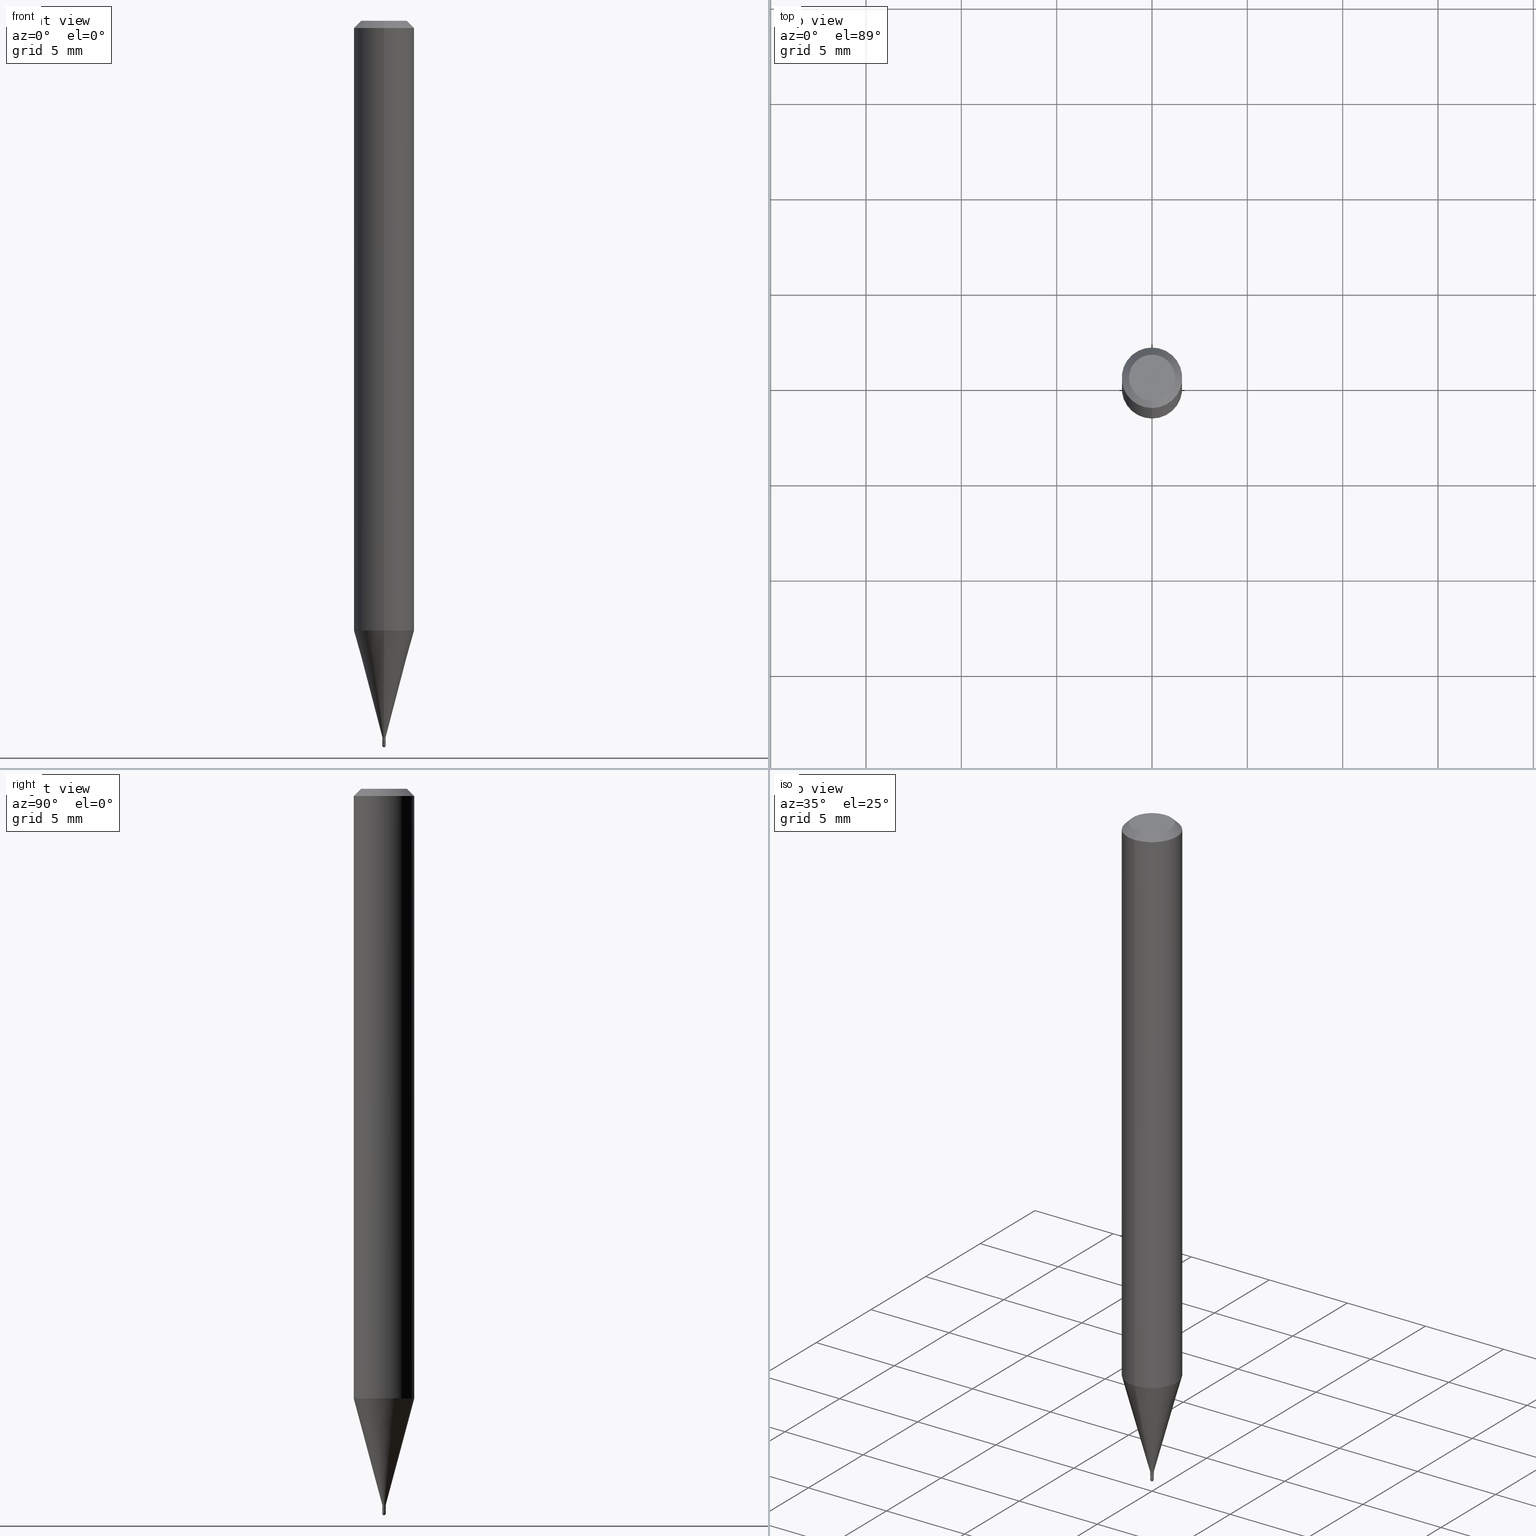
[diagram: canonical four-view strip — front | top / right | iso, engineering-drawing reading convention]
A machine part, canonical four-view strip (front | top / right | iso — engineering-drawing reading convention). The complete STEP part file that produces these views, byte-faithful:
ISO-10303-21;
HEADER;
FILE_DESCRIPTION (( 'STEP AP203' ),
    '1' );
FILE_NAME ('03031.STEP',
    '2024-03-08T18:01:46',
    ( '' ),
    ( '' ),
    'SwSTEP 2.0',
    'SolidWorks 2023',
    '' );
FILE_SCHEMA (( 'CONFIG_CONTROL_DESIGN' ));
ENDSEC;

DATA;
#1 = PERSON_AND_ORGANIZATION ( #153, #416 ) ;
#2 = CARTESIAN_POINT ( 'NONE',  ( 3.659644068456056966E-29, -5.225001823578766863E-15, -1.496499999999999941 ) ) ;
#3 = EDGE_CURVE ( 'NONE', #361, #146, #306, .T. ) ;
#4 = CONICAL_SURFACE ( 'NONE', #103, 0.06250000000000000000, 0.7853981633974483900 ) ;
#5 = CIRCLE ( 'NONE', #253, 0.003499999999999920709 ) ;
#6 = LINE ( 'NONE', #8, #76 ) ;
#7 = DIRECTION ( 'NONE',  ( -6.982962677686265922E-15, -1.000000000000000000, 3.483106191921935554E-15 ) ) ;
#8 = CARTESIAN_POINT ( 'NONE',  ( -2.444036937186523075E-17, -0.003500000000005088017, -1.478999999999999648 ) ) ;
#9 = EDGE_CURVE ( 'NONE', #384, #146, #501, .T. ) ;
#10 = CARTESIAN_POINT ( 'NONE',  ( -2.444036937190140433E-17, -0.003499999999999924612, 1.222017216594032773E-17 ) ) ;
#11 = ORIENTED_EDGE ( 'NONE', *, *, #314, .F. ) ;
#12 = EDGE_LOOP ( 'NONE', ( #18, #437, #322, #287, #127 ) ) ;
#13 = AXIS2_PLACEMENT_3D ( 'NONE', #124, #459, #509 ) ;
#14 = ORIENTED_EDGE ( 'NONE', *, *, #341, .F. ) ;
#15 = FACE_OUTER_BOUND ( 'NONE', #220, .T. ) ;
#16 = ORIENTED_EDGE ( 'NONE', *, *, #460, .F. ) ;
#17 = CARTESIAN_POINT ( 'NONE',  ( 3.668206956139024136E-31, -5.237216642545884237E-17, -0.01499999999999976179 ) ) ;
#18 = ORIENTED_EDGE ( 'NONE', *, *, #222, .T. ) ;
#19 = ORIENTED_EDGE ( 'NONE', *, *, #365, .T. ) ;
#20 = LINE ( 'NONE', #142, #327 ) ;
#21 = APPROVAL ( #201, 'UNSPECIFIED' ) ;
#22 = ORIENTED_EDGE ( 'NONE', *, *, #498, .T. ) ;
#23 = ORIENTED_EDGE ( 'NONE', *, *, #74, .F. ) ;
#24 = CIRCLE ( 'NONE', #94, 0.06250000000000000000 ) ;
#25 = VECTOR ( 'NONE', #264, 39.37007874015748143 ) ;
#26 = DIRECTION ( 'NONE',  ( -2.445468806185136597E-29, 3.491481338843145583E-15, 1.000000000000000000 ) ) ;
#27 = ORIENTED_EDGE ( 'NONE', *, *, #278, .T. ) ;
#28 = ORIENTED_EDGE ( 'NONE', *, *, #43, .T. ) ;
#29 = DIRECTION ( 'NONE',  ( 1.000000000000000000, 0.000000000000000000, 0.000000000000000000 ) ) ;
#30 = DIRECTION ( 'NONE',  ( -2.445471304092721818E-29, 3.491477761697311641E-15, 1.000000000000000000 ) ) ;
#31 = CC_DESIGN_PERSON_AND_ORGANIZATION_ASSIGNMENT ( #385, #272, ( #263 ) ) ;
#32 = VECTOR ( 'NONE', #363, 39.37007874015748143 ) ;
#33 = AXIS2_PLACEMENT_3D ( 'NONE', #315, #214, #362 ) ;
#34 = EDGE_CURVE ( 'NONE', #280, #205, #456, .T. ) ;
#35 = LENGTH_MEASURE_WITH_UNIT ( LENGTH_MEASURE( 0.02539999999999999897 ), #292 );
#36 = CALENDAR_DATE ( 2024, 8, 3 ) ;
#37 = PERSON_AND_ORGANIZATION ( #153, #416 ) ;
#38 = APPROVAL_PERSON_ORGANIZATION ( #389, #136, #121 ) ;
#39 = DIRECTION ( 'NONE',  ( -6.982962677686265922E-15, -1.000000000000000000, 3.491477761697311641E-15 ) ) ;
#40 = EDGE_CURVE ( 'NONE', #250, #254, #111, .T. ) ;
#41 = FACE_OUTER_BOUND ( 'NONE', #102, .T. ) ;
#42 = COORDINATED_UNIVERSAL_TIME_OFFSET ( 5, 0, .BEHIND. ) ;
#43 = EDGE_CURVE ( 'NONE', #405, #384, #239, .T. ) ;
#44 = APPROVAL_DATE_TIME ( #417, #21 ) ;
#45 = ORIENTED_EDGE ( 'NONE', *, *, #222, .F. ) ;
#46 = CALENDAR_DATE ( 2024, 8, 3 ) ;
#47 = ORIENTED_EDGE ( 'NONE', *, *, #148, .T. ) ;
#48 = AXIS2_PLACEMENT_3D ( 'NONE', #402, #143, #449 ) ;
#49 = LOCAL_TIME ( 13, 1, 46.00000000000000000, #510 ) ;
#50 = DIRECTION ( 'NONE',  ( 2.445471304092721818E-29, -3.491477761697311641E-15, -1.000000000000000000 ) ) ;
#51 = ORIENTED_EDGE ( 'NONE', *, *, #9, .F. ) ;
#52 = ORIENTED_EDGE ( 'NONE', *, *, #74, .T. ) ;
#53 = SPHERICAL_SURFACE ( 'NONE', #235, 0.003499999999999920709 ) ;
#54 = CARTESIAN_POINT ( 'NONE',  ( 3.078381292588917151E-29, -4.395103637941402881E-15, -1.258809002353436624 ) ) ;
#55 = CARTESIAN_POINT ( 'NONE',  ( -4.364351673553916201E-16, -0.06250000000000000000, 2.182173601060819776E-16 ) ) ;
#56 = ORIENTED_EDGE ( 'NONE', *, *, #213, .F. ) ;
#57 = DIRECTION ( 'NONE',  ( -6.982962677686265922E-15, -1.000000000000000000, 0.000000000000000000 ) ) ;
#58 = PLANE ( 'NONE',  #90 ) ;
#59 = EDGE_CURVE ( 'NONE', #361, #133, #24, .T. ) ;
#60 = ORIENTED_EDGE ( 'NONE', *, *, #59, .T. ) ;
#61 = ADVANCED_FACE ( 'NONE', ( #311 ), #215, .F. ) ;
#62 = ORIENTED_EDGE ( 'NONE', *, *, #278, .F. ) ;
#63 = FACE_OUTER_BOUND ( 'NONE', #129, .T. ) ;
#64 = DIRECTION ( 'NONE',  ( -2.445468806185136597E-29, 3.491481338843145583E-15, 1.000000000000000000 ) ) ;
#65 = CARTESIAN_POINT ( 'NONE',  ( -0.003500000000000000940, 2.486899575160351319E-17, -1.721627281589217370E-31 ) ) ;
#66 = AXIS2_PLACEMENT_3D ( 'NONE', #247, #396, #208 ) ;
#67 = EDGE_LOOP ( 'NONE', ( #98, #450 ) ) ;
#68 = DIRECTION ( 'NONE',  ( 6.982962677686265922E-15, 1.000000000000000000, -3.491477761697311641E-15 ) ) ;
#69 = ADVANCED_FACE ( 'NONE', ( #150 ), #290, .T. ) ;
#70 = UNCERTAINTY_MEASURE_WITH_UNIT (LENGTH_MEASURE( 1.000000000000000082E-05 ), #71, 'distance_accuracy_value', 'NONE');
#71 =( CONVERSION_BASED_UNIT ( 'INCH', #35 ) LENGTH_UNIT ( ) NAMED_UNIT ( #487 ) );
#72 = EDGE_CURVE ( 'NONE', #283, #429, #108, .T. ) ;
#73 = CARTESIAN_POINT ( 'NONE',  ( 3.659344760254844264E-29, -5.225430449958468947E-15, -1.496499999999999941 ) ) ;
#74 = EDGE_CURVE ( 'NONE', #205, #135, #20, .T. ) ;
#75 = CARTESIAN_POINT ( 'NONE',  ( 3.667754246975885842E-29, -5.237864947834270120E-15, -1.499999999999999778 ) ) ;
#76 = VECTOR ( 'NONE', #275, 39.37007874015748854 ) ;
#77 = AXIS2_PLACEMENT_3D ( 'NONE', #224, #505, #381 ) ;
#78 = APPLICATION_CONTEXT ( 'configuration controlled 3d designs of mechanical parts and assemblies' ) ;
#79 = EDGE_CURVE ( 'NONE', #392, #135, #226, .T. ) ;
#80 = FACE_OUTER_BOUND ( 'NONE', #497, .T. ) ;
#81 = PERSON_AND_ORGANIZATION_ROLE ( 'creator' ) ;
#82 = CARTESIAN_POINT ( 'NONE',  ( -5.856621878284870506E-45, 8.361686768713868835E-31, 2.394884727734598175E-16 ) ) ;
#83 = FACE_OUTER_BOUND ( 'NONE', #299, .T. ) ;
#84 = PERSON_AND_ORGANIZATION_ROLE ( 'classification_officer' ) ;
#85 = DIRECTION ( 'NONE',  ( -2.445471304092721818E-29, 3.491477761697311641E-15, 1.000000000000000000 ) ) ;
#86 = EDGE_CURVE ( 'NONE', #181, #146, #225, .T. ) ;
#87 = SPHERICAL_SURFACE ( 'NONE', #435, 0.003499999999999920709 ) ;
#88 = CALENDAR_DATE ( 2024, 8, 3 ) ;
#89 = VECTOR ( 'NONE', #374, 39.37007874015748143 ) ;
#90 = AXIS2_PLACEMENT_3D ( 'NONE', #182, #221, #356 ) ;
#91 = CARTESIAN_POINT ( 'NONE',  ( 3.641303052409668307E-29, -5.198815713537444309E-15, -1.489000000000000101 ) ) ;
#92 = CYLINDRICAL_SURFACE ( 'NONE', #223, 0.003499999999999924612 ) ;
#93 = SHAPE_DEFINITION_REPRESENTATION ( #461, #329 ) ;
#94 = AXIS2_PLACEMENT_3D ( 'NONE', #54, #125, #171 ) ;
#95 = CIRCLE ( 'NONE', #279, 0.003500000000000000507 ) ;
#96 = FACE_OUTER_BOUND ( 'NONE', #474, .T. ) ;
#97 = ADVANCED_FACE ( 'NONE', ( #80 ), #258, .T. ) ;
#98 = ORIENTED_EDGE ( 'NONE', *, *, #229, .T. ) ;
#99 = CARTESIAN_POINT ( 'NONE',  ( 2.486899575163981620E-17, 0.003499999999994735621, -1.496499999999999941 ) ) ;
#100 = DIRECTION ( 'NONE',  ( 1.000000000000000000, -6.982962677686265133E-15, 4.883557194083112340E-29 ) ) ;
#101 = ORIENTED_EDGE ( 'NONE', *, *, #79, .T. ) ;
#102 = EDGE_LOOP ( 'NONE', ( #398, #27, #282, #494 ) ) ;
#103 = AXIS2_PLACEMENT_3D ( 'NONE', #207, #50, #305 ) ;
#104 = AXIS2_PLACEMENT_3D ( 'NONE', #344, #483, #172 ) ;
#105 = DIRECTION ( 'NONE',  ( -1.000000000000000000, 6.982962677686265922E-15, -4.876176775795935793E-29 ) ) ;
#106 = EDGE_LOOP ( 'NONE', ( #400, #174 ) ) ;
#107 = DIRECTION ( 'NONE',  ( 6.982962677686265922E-15, 1.000000000000000000, -3.483106191921935554E-15 ) ) ;
#108 = LINE ( 'NONE', #65, #32 ) ;
#109 = ORIENTED_EDGE ( 'NONE', *, *, #79, .F. ) ;
#110 = FACE_OUTER_BOUND ( 'NONE', #106, .T. ) ;
#111 = CIRCLE ( 'NONE', #66, 0.003499999999999924179 ) ;
#112 = LOCAL_TIME ( 13, 1, 46.00000000000000000, #236 ) ;
#113 = ORIENTED_EDGE ( 'NONE', *, *, #162, .T. ) ;
#114 = DIRECTION ( 'NONE',  ( 1.000000000000000000, -6.982962677686265133E-15, 4.883557194083112340E-29 ) ) ;
#115 = PERSON_AND_ORGANIZATION ( #153, #416 ) ;
#116 = ADVANCED_FACE ( 'NONE', ( #83 ), #87, .T. ) ;
#117 = VECTOR ( 'NONE', #139, 39.37007874015748143 ) ;
#118 = CYLINDRICAL_SURFACE ( 'NONE', #104, 0.003499999999999924612 ) ;
#119 = DIRECTION ( 'NONE',  ( -6.982962677686265922E-15, -1.000000000000000000, 3.491477761697311641E-15 ) ) ;
#120 = DIRECTION ( 'NONE',  ( -2.445471304092721818E-29, 3.491477761697311641E-15, 1.000000000000000000 ) ) ;
#121 = APPROVAL_ROLE ( '' ) ;
#122 = ADVANCED_FACE ( 'NONE', ( #420 ), #92, .T. ) ;
#123 = AXIS2_PLACEMENT_3D ( 'NONE', #339, #512, #419 ) ;
#124 = CARTESIAN_POINT ( 'NONE',  ( 3.641306771794062712E-29, -5.198810387167297216E-15, -1.489000000000000101 ) ) ;
#125 = DIRECTION ( 'NONE',  ( -2.445471304092721818E-29, 3.491477761697311641E-15, 1.000000000000000000 ) ) ;
#126 = CALENDAR_DATE ( 2024, 8, 3 ) ;
#127 = ORIENTED_EDGE ( 'NONE', *, *, #341, .T. ) ;
#128 = AXIS2_PLACEMENT_3D ( 'NONE', #271, #85, #463 ) ;
#129 = EDGE_LOOP ( 'NONE', ( #252, #56 ) ) ;
#130 = LOCAL_TIME ( 13, 1, 46.00000000000000000, #166 ) ;
#131 = DIRECTION ( 'NONE',  ( -2.445471304092721818E-29, 3.491477761697311641E-15, 1.000000000000000000 ) ) ;
#132 = ADVANCED_FACE ( 'NONE', ( #159 ), #169, .T. ) ;
#133 = VERTEX_POINT ( 'NONE', #496 ) ;
#134 = FACE_OUTER_BOUND ( 'NONE', #426, .T. ) ;
#135 = VERTEX_POINT ( 'NONE', #190 ) ;
#136 = APPROVAL ( #422, 'UNSPECIFIED' ) ;
#137 = ORIENTED_EDGE ( 'NONE', *, *, #314, .T. ) ;
#138 = CARTESIAN_POINT ( 'NONE',  ( -2.444036937186507975E-17, -0.003500000000005132686, -1.488500000000000156 ) ) ;
#139 = DIRECTION ( 'NONE',  ( -4.937700262164674260E-15, -0.7071067811865632269, 0.7071067811865319186 ) ) ;
#140 = CONICAL_SURFACE ( 'NONE', #13, 0.003000000000000000496, 0.7853981633974739252 ) ;
#141 =( GEOMETRIC_REPRESENTATION_CONTEXT ( 3 ) GLOBAL_UNCERTAINTY_ASSIGNED_CONTEXT ( ( #70 ) ) GLOBAL_UNIT_ASSIGNED_CONTEXT ( ( #71, #193, #191 ) ) REPRESENTATION_CONTEXT ( 'NONE', 'WORKASPACE' ) );
#142 = CARTESIAN_POINT ( 'NONE',  ( 2.131628207283941996E-17, 0.002999999999994801530, -1.489000000000000101 ) ) ;
#143 = DIRECTION ( 'NONE',  ( -2.445468806185136597E-29, 3.491481338843145583E-15, 1.000000000000000000 ) ) ;
#144 = CARTESIAN_POINT ( 'NONE',  ( -3.773273898774340269E-16, -0.04749999999999999362, 4.053336664540820652E-16 ) ) ;
#145 = CARTESIAN_POINT ( 'NONE',  ( 4.440892098500935790E-16, 0.06249999999999995143, -0.01499999999999997863 ) ) ;
#146 = VERTEX_POINT ( 'NONE', #145 ) ;
#147 = DIRECTION ( 'NONE',  ( -6.982962677686265922E-15, -1.000000000000000000, 0.000000000000000000 ) ) ;
#148 = EDGE_CURVE ( 'NONE', #254, #361, #332, .T. ) ;
#149 = DIRECTION ( 'NONE',  ( 1.839019923739602682E-15, 0.2588190451025252914, 0.9659258262890670910 ) ) ;
#150 = FACE_OUTER_BOUND ( 'NONE', #12, .T. ) ;
#151 = CLOSED_SHELL ( 'NONE', ( #69, #116, #61, #273, #421 ) ) ;
#152 = AXIS2_PLACEMENT_3D ( 'NONE', #335, #289, #68 ) ;
#153 = PERSON ( 'UNSPECIFIED', 'UNSPECIFIED', 'UNSPECIFIED', ('UNSPECIFIED'), ('UNSPECIFIED'), ('UNSPECIFIED') ) ;
#154 = CARTESIAN_POINT ( 'NONE',  ( 3.641303052409668307E-29, -5.198815713537444309E-15, -1.489000000000000101 ) ) ;
#155 = CARTESIAN_POINT ( 'NONE',  ( 4.364351673553919652E-16, 0.06249999999999995143, -0.01499999999999997863 ) ) ;
#156 = CARTESIAN_POINT ( 'NONE',  ( 3.659644068456056966E-29, -5.225001823578766863E-15, -1.496499999999999941 ) ) ;
#157 = DIRECTION ( 'NONE',  ( 7.105427357601001070E-15, 1.000000000000000000, 0.000000000000000000 ) ) ;
#158 = DIRECTION ( 'NONE',  ( 1.000000000000000000, -6.982962677686192558E-15, 0.000000000000000000 ) ) ;
#159 = FACE_OUTER_BOUND ( 'NONE', #371, .T. ) ;
#160 = DATE_AND_TIME ( #36, #387 ) ;
#161 = DATE_TIME_ROLE ( 'creation_date' ) ;
#162 = EDGE_CURVE ( 'NONE', #254, #250, #465, .T. ) ;
#163 = DIRECTION ( 'NONE',  ( -6.982962677686265133E-15, -1.000000000000000000, 0.000000000000000000 ) ) ;
#164 = EDGE_CURVE ( 'NONE', #405, #181, #340, .T. ) ;
#165 = VECTOR ( 'NONE', #466, 39.37007874015748143 ) ;
#166 = COORDINATED_UNIVERSAL_TIME_OFFSET ( 5, 0, .BEHIND. ) ;
#167 = VECTOR ( 'NONE', #313, 39.37007874015748143 ) ;
#168 = AXIS2_PLACEMENT_3D ( 'NONE', #259, #26, #331 ) ;
#169 = CYLINDRICAL_SURFACE ( 'NONE', #403, 0.06250000000000000000 ) ;
#170 = EDGE_CURVE ( 'NONE', #146, #384, #268, .T. ) ;
#171 = DIRECTION ( 'NONE',  ( -6.982962677686265922E-15, -1.000000000000000000, 4.370956789862821150E-15 ) ) ;
#172 = DIRECTION ( 'NONE',  ( -6.982962677686265922E-15, -1.000000000000000000, 3.491477761697311641E-15 ) ) ;
#173 = ORIENTED_EDGE ( 'NONE', *, *, #300, .T. ) ;
#174 = ORIENTED_EDGE ( 'NONE', *, *, #164, .T. ) ;
#175 = DIRECTION ( 'NONE',  ( -2.445471304092721818E-29, 3.491477761697311641E-15, 1.000000000000000000 ) ) ;
#176 = ORIENTED_EDGE ( 'NONE', *, *, #34, .T. ) ;
#177 = DIRECTION ( 'NONE',  ( -6.982962677686265133E-15, -1.000000000000000000, 0.000000000000000000 ) ) ;
#178 = CIRCLE ( 'NONE', #378, 0.003499999999999925046 ) ;
#179 = PRODUCT ( '03031', '03031', '', ( #455 ) ) ;
#180 = CC_DESIGN_SECURITY_CLASSIFICATION ( #447, ( #263 ) ) ;
#181 = VERTEX_POINT ( 'NONE', #423 ) ;
#182 = CARTESIAN_POINT ( 'NONE',  ( 3.641306771794062712E-29, -5.198810387167297216E-15, -1.489000000000000101 ) ) ;
#183 = EDGE_LOOP ( 'NONE', ( #242, #19, #409, #469, #240 ) ) ;
#184 = EDGE_LOOP ( 'NONE', ( #440, #47, #401, #350 ) ) ;
#185 = ORIENTED_EDGE ( 'NONE', *, *, #170, .T. ) ;
#186 = CARTESIAN_POINT ( 'NONE',  ( -0.003500000000000000507, -5.187039772806502058E-15, -1.489000000000000101 ) ) ;
#187 = VERTEX_POINT ( 'NONE', #233 ) ;
#188 = APPLICATION_PROTOCOL_DEFINITION ( 'international standard', 'config_control_design', 1994, #373 ) ;
#189 = DIRECTION ( 'NONE',  ( -2.445471304092721818E-29, 3.491477761697311641E-15, 1.000000000000000000 ) ) ;
#190 = CARTESIAN_POINT ( 'NONE',  ( 2.486899575163929851E-17, 0.003499999999994717406, -1.488500000000000156 ) ) ;
#191 =( NAMED_UNIT ( * ) SI_UNIT ( $, .STERADIAN. ) SOLID_ANGLE_UNIT ( ) );
#192 = CIRCLE ( 'NONE', #197, 0.003500000000000000940 ) ;
#193 =( NAMED_UNIT ( * ) PLANE_ANGLE_UNIT ( ) SI_UNIT ( $, .RADIAN. ) );
#194 = FACE_OUTER_BOUND ( 'NONE', #267, .T. ) ;
#195 = DIRECTION ( 'NONE',  ( -6.982962677686266711E-15, -1.000000000000000000, 3.491477761697310852E-15 ) ) ;
#196 = ADVANCED_FACE ( 'NONE', ( #194 ), #140, .T. ) ;
#197 = AXIS2_PLACEMENT_3D ( 'NONE', #2, #202, #301 ) ;
#198 = AXIS2_PLACEMENT_3D ( 'NONE', #281, #451, #333 ) ;
#199 = PERSON_AND_ORGANIZATION_ROLE ( 'creator' ) ;
#200 = CARTESIAN_POINT ( 'NONE',  ( 2.309263891223939467E-17, 0.002999999999994801530, -1.489000000000000101 ) ) ;
#201 = APPROVAL_STATUS ( 'not_yet_approved' ) ;
#202 = DIRECTION ( 'NONE',  ( -2.445468806185136597E-29, 3.491481338843145583E-15, 1.000000000000000000 ) ) ;
#203 = CARTESIAN_POINT ( 'NONE',  ( 4.440892098500625669E-16, 0.06250000000000000000, -2.182173601060819776E-16 ) ) ;
#204 = CARTESIAN_POINT ( 'NONE',  ( -2.094888803302238693E-17, -0.003000000000005199462, -1.489000000000000101 ) ) ;
#205 = VERTEX_POINT ( 'NONE', #200 ) ;
#206 = SECURITY_CLASSIFICATION_LEVEL ( 'unclassified' ) ;
#207 = CARTESIAN_POINT ( 'NONE',  ( 3.668206956139024136E-31, -5.237216642545884237E-17, -0.01499999999999976179 ) ) ;
#208 = DIRECTION ( 'NONE',  ( -6.982962677686265133E-15, -1.000000000000000000, 0.000000000000000000 ) ) ;
#209 = CIRCLE ( 'NONE', #490, 0.04749999999999999362 ) ;
#210 = COORDINATED_UNIVERSAL_TIME_OFFSET ( 5, 0, .BEHIND. ) ;
#211 = AXIS2_PLACEMENT_3D ( 'NONE', #288, #376, #29 ) ;
#212 = CARTESIAN_POINT ( 'NONE',  ( 3.641306771794062712E-29, -5.198810387167297216E-15, -1.489000000000000101 ) ) ;
#213 = EDGE_CURVE ( 'NONE', #205, #280, #410, .T. ) ;
#214 = DIRECTION ( 'NONE',  ( -2.445471304092721818E-29, 3.491477761697311641E-15, 1.000000000000000000 ) ) ;
#215 = PLANE ( 'NONE',  #334 ) ;
#216 = VERTEX_POINT ( 'NONE', #457 ) ;
#217 = VECTOR ( 'NONE', #260, 39.37007874015748143 ) ;
#218 = CARTESIAN_POINT ( 'NONE',  ( -5.856621878284870506E-45, 8.361686768713868835E-31, 2.394884727734598175E-16 ) ) ;
#219 = ORIENTED_EDGE ( 'NONE', *, *, #383, .T. ) ;
#220 = EDGE_LOOP ( 'NONE', ( #480, #256, #485, #185 ) ) ;
#221 = DIRECTION ( 'NONE',  ( -2.445471304092721258E-29, 3.491477761697311641E-15, 1.000000000000000000 ) ) ;
#222 = EDGE_CURVE ( 'NONE', #394, #283, #192, .T. ) ;
#223 = AXIS2_PLACEMENT_3D ( 'NONE', #454, #189, #119 ) ;
#224 = CARTESIAN_POINT ( 'NONE',  ( 3.078381292588917151E-29, -4.395103637941402881E-15, -1.258809002353436624 ) ) ;
#225 = LINE ( 'NONE', #155, #89 ) ;
#226 = CIRCLE ( 'NONE', #251, 0.003499999999999925046 ) ;
#227 = DIRECTION ( 'NONE',  ( -6.982962677686265922E-15, -1.000000000000000000, 0.000000000000000000 ) ) ;
#228 = AXIS2_PLACEMENT_3D ( 'NONE', #255, #326, #388 ) ;
#229 = EDGE_CURVE ( 'NONE', #246, #429, #307, .T. ) ;
#230 = PERSON_AND_ORGANIZATION ( #153, #416 ) ;
#231 = DIRECTION ( 'NONE',  ( -2.445468806185136597E-29, 3.491481338843145583E-15, 1.000000000000000000 ) ) ;
#232 = ADVANCED_FACE ( 'NONE', ( #345 ), #4, .T. ) ;
#233 = CARTESIAN_POINT ( 'NONE',  ( 0.003500000000000000940, -5.236349137930007031E-15, -1.496499999999999941 ) ) ;
#234 = EDGE_CURVE ( 'NONE', #250, #133, #6, .T. ) ;
#235 = AXIS2_PLACEMENT_3D ( 'NONE', #352, #100, #177 ) ;
#236 = COORDINATED_UNIVERSAL_TIME_OFFSET ( 5, 0, .BEHIND. ) ;
#237 = DIRECTION ( 'NONE',  ( 1.000000000000000000, -6.982962677686192558E-15, 0.000000000000000000 ) ) ;
#238 = APPROVAL_ROLE ( '' ) ;
#239 = LINE ( 'NONE', #348, #368 ) ;
#240 = ORIENTED_EDGE ( 'NONE', *, *, #464, .F. ) ;
#241 = DIRECTION ( 'NONE',  ( -2.445471304092721818E-29, 3.491477761697311641E-15, 1.000000000000000000 ) ) ;
#242 = ORIENTED_EDGE ( 'NONE', *, *, #72, .F. ) ;
#243 = CARTESIAN_POINT ( 'NONE',  ( -0.003500000000000000940, -5.187039772806502058E-15, -1.496499999999999941 ) ) ;
#244 = AXIS2_PLACEMENT_3D ( 'NONE', #476, #471, #7 ) ;
#245 = ORIENTED_EDGE ( 'NONE', *, *, #86, .F. ) ;
#246 = VERTEX_POINT ( 'NONE', #302 ) ;
#247 = CARTESIAN_POINT ( 'NONE',  ( 3.616852058753135017E-29, -5.163895609550323406E-15, -1.478999999999999648 ) ) ;
#248 = ORIENTED_EDGE ( 'NONE', *, *, #473, .F. ) ;
#249 = CARTESIAN_POINT ( 'NONE',  ( 4.440892098500932831E-16, 0.06249999999999561462, -1.258809002353437068 ) ) ;
#250 = VERTEX_POINT ( 'NONE', #468 ) ;
#251 = AXIS2_PLACEMENT_3D ( 'NONE', #448, #458, #227 ) ;
#252 = ORIENTED_EDGE ( 'NONE', *, *, #34, .F. ) ;
#253 = AXIS2_PLACEMENT_3D ( 'NONE', #73, #506, #157 ) ;
#254 = VERTEX_POINT ( 'NONE', #433 ) ;
#255 = CARTESIAN_POINT ( 'NONE',  ( 3.659644068456056966E-29, -5.225001823578766863E-15, -1.496499999999999941 ) ) ;
#256 = ORIENTED_EDGE ( 'NONE', *, *, #304, .F. ) ;
#257 = PLANE ( 'NONE',  #152 ) ;
#258 = CONICAL_SURFACE ( 'NONE', #424, 0.003499999999999924179, 0.2617993877991506291 ) ;
#259 = CARTESIAN_POINT ( 'NONE',  ( 0.000000000000000000, 0.000000000000000000, 0.000000000000000000 ) ) ;
#260 = DIRECTION ( 'NONE',  ( -2.445471304092721818E-29, 3.491477761697311641E-15, 1.000000000000000000 ) ) ;
#261 = FACE_OUTER_BOUND ( 'NONE', #184, .T. ) ;
#262 = CARTESIAN_POINT ( 'NONE',  ( -4.364351673553912750E-16, -0.06250000000000005551, -0.01499999999999954321 ) ) ;
#263 = PRODUCT_DEFINITION_FORMATION_WITH_SPECIFIED_SOURCE ( 'ANY', '', #179, .NOT_KNOWN. ) ;
#264 = DIRECTION ( 'NONE',  ( -2.445468806185136877E-29, 3.491481338843145188E-15, 1.000000000000000000 ) ) ;
#265 = CARTESIAN_POINT ( 'NONE',  ( 3.641306771794062712E-29, -5.198810387167297216E-15, -1.489000000000000101 ) ) ;
#266 = EDGE_LOOP ( 'NONE', ( #274, #28, #317, #245 ) ) ;
#267 = EDGE_LOOP ( 'NONE', ( #23, #492, #137, #62 ) ) ;
#268 = CIRCLE ( 'NONE', #128, 0.06250000000000000000 ) ;
#269 = APPROVAL_PERSON_ORGANIZATION ( #1, #359, #270 ) ;
#270 = APPROVAL_ROLE ( '' ) ;
#271 = CARTESIAN_POINT ( 'NONE',  ( 3.668206956139024136E-31, -5.237216642545884237E-17, -0.01499999999999976179 ) ) ;
#272 = PERSON_AND_ORGANIZATION_ROLE ( 'design_supplier' ) ;
#273 = ADVANCED_FACE ( 'NONE', ( #96 ), #53, .T. ) ;
#274 = ORIENTED_EDGE ( 'NONE', *, *, #164, .F. ) ;
#275 = DIRECTION ( 'NONE',  ( -1.807323732225332900E-15, -0.2588190451025185190, 0.9659258262890689783 ) ) ;
#276 = LINE ( 'NONE', #55, #347 ) ;
#277 = AXIS2_PLACEMENT_3D ( 'NONE', #82, #428, #195 ) ;
#278 = EDGE_CURVE ( 'NONE', #135, #392, #178, .T. ) ;
#279 = AXIS2_PLACEMENT_3D ( 'NONE', #154, #64, #158 ) ;
#280 = VERTEX_POINT ( 'NONE', #204 ) ;
#281 = CARTESIAN_POINT ( 'NONE',  ( 0.000000000000000000, 0.000000000000000000, 0.000000000000000000 ) ) ;
#282 = ORIENTED_EDGE ( 'NONE', *, *, #351, .T. ) ;
#283 = VERTEX_POINT ( 'NONE', #243 ) ;
#284 = CYLINDRICAL_SURFACE ( 'NONE', #198, 0.06250000000000000000 ) ;
#285 = ORIENTED_EDGE ( 'NONE', *, *, #234, .T. ) ;
#286 = DIRECTION ( 'NONE',  ( 5.024295867788190974E-15, 0.7071067811865681119, 0.7071067811865270336 ) ) ;
#287 = ORIENTED_EDGE ( 'NONE', *, *, #390, .F. ) ;
#288 = CARTESIAN_POINT ( 'NONE',  ( 0.000000000000000000, 0.000000000000000000, 0.000000000000000000 ) ) ;
#289 = DIRECTION ( 'NONE',  ( 2.445471304092721258E-29, -3.491477761697311641E-15, -1.000000000000000000 ) ) ;
#290 = CYLINDRICAL_SURFACE ( 'NONE', #48, 0.003500000000000000940 ) ;
#291 = CC_DESIGN_PERSON_AND_ORGANIZATION_ASSIGNMENT ( #230, #84, ( #447 ) ) ;
#292 =( LENGTH_UNIT ( ) NAMED_UNIT ( * ) SI_UNIT ( $, .METRE. ) );
#293 = DIRECTION ( 'NONE',  ( 1.000000000000000000, -6.982962677686191769E-15, 0.000000000000000000 ) ) ;
#294 = PRODUCT_RELATED_PRODUCT_CATEGORY ( 'detail', '', ( #179 ) ) ;
#295 = DIRECTION ( 'NONE',  ( -2.445471304092721818E-29, 3.491477761697311641E-15, 1.000000000000000000 ) ) ;
#296 = CLOSED_SHELL ( 'NONE', ( #122, #321, #232, #399, #481, #97, #132, #310, #479, #316, #196, #375 ) ) ;
#297 = CIRCLE ( 'NONE', #77, 0.06250000000000000000 ) ;
#298 = APPROVAL_DATE_TIME ( #160, #359 ) ;
#299 = EDGE_LOOP ( 'NONE', ( #16, #219, #14, #248 ) ) ;
#300 = EDGE_CURVE ( 'NONE', #133, #384, #276, .T. ) ;
#301 = DIRECTION ( 'NONE',  ( 1.000000000000000000, -6.982962677686191769E-15, 0.000000000000000000 ) ) ;
#302 = CARTESIAN_POINT ( 'NONE',  ( 0.003500000000000000507, -5.223256082909346148E-15, -1.489000000000000101 ) ) ;
#303 = CARTESIAN_POINT ( 'NONE',  ( 3.659344760254844264E-29, -5.225430449958468947E-15, -1.496499999999999941 ) ) ;
#304 = EDGE_CURVE ( 'NONE', #181, #405, #209, .T. ) ;
#305 = DIRECTION ( 'NONE',  ( 6.982962677686265922E-15, 1.000000000000000000, -3.483106191921935554E-15 ) ) ;
#306 = LINE ( 'NONE', #203, #165 ) ;
#307 = CIRCLE ( 'NONE', #475, 0.003500000000000000507 ) ;
#308 = AXIS2_PLACEMENT_3D ( 'NONE', #495, #30, #452 ) ;
#309 = APPROVAL_DATE_TIME ( #342, #136 ) ;
#310 = ADVANCED_FACE ( 'NONE', ( #15 ), #446, .T. ) ;
#311 = FACE_OUTER_BOUND ( 'NONE', #67, .T. ) ;
#312 = DATE_AND_TIME ( #88, #491 ) ;
#313 = DIRECTION ( 'NONE',  ( -2.445471304092721818E-29, 3.491477761697311641E-15, 1.000000000000000000 ) ) ;
#314 = EDGE_CURVE ( 'NONE', #280, #392, #397, .T. ) ;
#315 = CARTESIAN_POINT ( 'NONE',  ( 3.641306771794062712E-29, -5.198810387167297216E-15, -1.489000000000000101 ) ) ;
#316 = ADVANCED_FACE ( 'NONE', ( #63 ), #58, .F. ) ;
#317 = ORIENTED_EDGE ( 'NONE', *, *, #9, .T. ) ;
#318 = APPROVAL_PERSON_ORGANIZATION ( #37, #21, #238 ) ;
#319 = ORIENTED_EDGE ( 'NONE', *, *, #148, .F. ) ;
#320 = ORIENTED_EDGE ( 'NONE', *, *, #462, .T. ) ;
#321 = ADVANCED_FACE ( 'NONE', ( #367 ), #453, .T. ) ;
#322 = ORIENTED_EDGE ( 'NONE', *, *, #229, .F. ) ;
#323 = DIRECTION ( 'NONE',  ( -2.445468806185136597E-29, 3.491481338843145583E-15, 1.000000000000000000 ) ) ;
#324 = ORIENTED_EDGE ( 'NONE', *, *, #351, .F. ) ;
#325 = CC_DESIGN_DATE_AND_TIME_ASSIGNMENT ( #312, #161, ( #504 ) ) ;
#326 = DIRECTION ( 'NONE',  ( -2.445468806185136597E-29, 3.491481338843145583E-15, 1.000000000000000000 ) ) ;
#327 = VECTOR ( 'NONE', #286, 39.37007874015748143 ) ;
#328 = AXIS2_PLACEMENT_3D ( 'NONE', #156, #413, #293 ) ;
#329 = ADVANCED_BREP_SHAPE_REPRESENTATION ( '03031', ( #442, #444, #211 ), #141 ) ;
#330 = APPLICATION_PROTOCOL_DEFINITION ( 'international standard', 'config_control_design', 1994, #78 ) ;
#331 = DIRECTION ( 'NONE',  ( 1.000000000000000000, -6.982962677686266711E-15, 4.876176775795935793E-29 ) ) ;
#332 = LINE ( 'NONE', #500, #386 ) ;
#333 = DIRECTION ( 'NONE',  ( -6.982962677686265922E-15, -1.000000000000000000, 3.491477761697311641E-15 ) ) ;
#334 = AXIS2_PLACEMENT_3D ( 'NONE', #355, #486, #105 ) ;
#335 = CARTESIAN_POINT ( 'NONE',  ( 3.316907271900976096E-16, 0.04749999999999999362, -4.610095729389238213E-17 ) ) ;
#336 = FACE_OUTER_BOUND ( 'NONE', #183, .T. ) ;
#337 = LINE ( 'NONE', #508, #25 ) ;
#338 = CARTESIAN_POINT ( 'NONE',  ( 3.616852058753135017E-29, -5.163895609550323406E-15, -1.478999999999999648 ) ) ;
#339 = CARTESIAN_POINT ( 'NONE',  ( 3.616852058753135017E-29, -5.163895609550323406E-15, -1.478999999999999648 ) ) ;
#340 = CIRCLE ( 'NONE', #277, 0.04749999999999999362 ) ;
#341 = EDGE_CURVE ( 'NONE', #187, #394, #436, .T. ) ;
#342 = DATE_AND_TIME ( #126, #130 ) ;
#343 = DIRECTION ( 'NONE',  ( -6.982962677686265922E-15, -1.000000000000000000, 0.000000000000000000 ) ) ;
#344 = CARTESIAN_POINT ( 'NONE',  ( 0.000000000000000000, 0.000000000000000000, 0.000000000000000000 ) ) ;
#345 = FACE_OUTER_BOUND ( 'NONE', #266, .T. ) ;
#346 = DIRECTION ( 'NONE',  ( -4.851104656540964275E-15, -0.7071067811865500152, -0.7071067811865450192 ) ) ;
#347 = VECTOR ( 'NONE', #354, 39.37007874015748143 ) ;
#348 = CARTESIAN_POINT ( 'NONE',  ( -4.287811248607203282E-16, -0.06250000000000005551, -0.01499999999999954321 ) ) ;
#349 = PERSON_AND_ORGANIZATION ( #153, #416 ) ;
#350 = ORIENTED_EDGE ( 'NONE', *, *, #234, .F. ) ;
#351 = EDGE_CURVE ( 'NONE', #392, #250, #408, .T. ) ;
#352 = CARTESIAN_POINT ( 'NONE',  ( 3.659344760254844264E-29, -5.225430449958468947E-15, -1.496499999999999941 ) ) ;
#353 = EDGE_LOOP ( 'NONE', ( #176, #52, #109, #11 ) ) ;
#354 = DIRECTION ( 'NONE',  ( -2.445471304092721818E-29, 3.491477761697311641E-15, 1.000000000000000000 ) ) ;
#355 = CARTESIAN_POINT ( 'NONE',  ( 2.444036937193834829E-17, 0.003499999999994801107, -1.489000000000000101 ) ) ;
#356 = DIRECTION ( 'NONE',  ( -6.982962677686265922E-15, -1.000000000000000000, 3.491477761697311641E-15 ) ) ;
#357 = AXIS2_PLACEMENT_3D ( 'NONE', #507, #499, #147 ) ;
#358 = ORIENTED_EDGE ( 'NONE', *, *, #383, .F. ) ;
#359 = APPROVAL ( #382, 'UNSPECIFIED' ) ;
#360 = ORIENTED_EDGE ( 'NONE', *, *, #460, .T. ) ;
#361 = VERTEX_POINT ( 'NONE', #249 ) ;
#362 = DIRECTION ( 'NONE',  ( -6.982962677686265922E-15, -1.000000000000000000, 0.000000000000000000 ) ) ;
#363 = DIRECTION ( 'NONE',  ( -2.445468806185136877E-29, 3.491481338843145188E-15, 1.000000000000000000 ) ) ;
#364 = ORIENTED_EDGE ( 'NONE', *, *, #300, .F. ) ;
#365 = EDGE_CURVE ( 'NONE', #283, #216, #404, .T. ) ;
#366 = ORIENTED_EDGE ( 'NONE', *, *, #3, .T. ) ;
#367 = FACE_OUTER_BOUND ( 'NONE', #353, .T. ) ;
#368 = VECTOR ( 'NONE', #346, 39.37007874015748143 ) ;
#369 = PERSON_AND_ORGANIZATION_ROLE ( 'design_owner' ) ;
#370 = AXIS2_PLACEMENT_3D ( 'NONE', #17, #489, #107 ) ;
#371 = EDGE_LOOP ( 'NONE', ( #432, #60, #173, #439 ) ) ;
#372 = CC_DESIGN_PERSON_AND_ORGANIZATION_ASSIGNMENT ( #467, #199, ( #263 ) ) ;
#373 = APPLICATION_CONTEXT ( 'configuration controlled 3d designs of mechanical parts and assemblies' ) ;
#374 = DIRECTION ( 'NONE',  ( 4.937700262164548042E-15, 0.7071067811865451302, -0.7071067811865499042 ) ) ;
#375 = ADVANCED_FACE ( 'NONE', ( #41 ), #118, .T. ) ;
#376 = DIRECTION ( 'NONE',  ( 0.000000000000000000, 0.000000000000000000, 1.000000000000000000 ) ) ;
#377 = AXIS2_PLACEMENT_3D ( 'NONE', #265, #295, #343 ) ;
#378 = AXIS2_PLACEMENT_3D ( 'NONE', #395, #175, #472 ) ;
#379 = CC_DESIGN_APPROVAL ( #21, ( #263 ) ) ;
#380 = CC_DESIGN_DATE_AND_TIME_ASSIGNMENT ( #430, #391, ( #447 ) ) ;
#381 = DIRECTION ( 'NONE',  ( -6.982962677686265922E-15, -1.000000000000000000, 4.370956789862821150E-15 ) ) ;
#382 = APPROVAL_STATUS ( 'not_yet_approved' ) ;
#383 = EDGE_CURVE ( 'NONE', #484, #394, #5, .T. ) ;
#384 = VERTEX_POINT ( 'NONE', #262 ) ;
#385 = PERSON_AND_ORGANIZATION ( #153, #416 ) ;
#386 = VECTOR ( 'NONE', #149, 39.37007874015748143 ) ;
#387 = LOCAL_TIME ( 13, 1, 46.00000000000000000, #210 ) ;
#388 = DIRECTION ( 'NONE',  ( 1.000000000000000000, -6.982962677686191769E-15, 0.000000000000000000 ) ) ;
#389 = PERSON_AND_ORGANIZATION ( #153, #416 ) ;
#390 = EDGE_CURVE ( 'NONE', #187, #246, #337, .T. ) ;
#391 = DATE_TIME_ROLE ( 'classification_date' ) ;
#392 = VERTEX_POINT ( 'NONE', #138 ) ;
#393 = CC_DESIGN_APPROVAL ( #359, ( #447 ) ) ;
#394 = VERTEX_POINT ( 'NONE', #99 ) ;
#395 = CARTESIAN_POINT ( 'NONE',  ( 3.640084036142016691E-29, -5.197064648286448999E-15, -1.488500000000000156 ) ) ;
#396 = DIRECTION ( 'NONE',  ( -2.445471304092721818E-29, 3.491477761697311641E-15, 1.000000000000000000 ) ) ;
#397 = LINE ( 'NONE', #478, #117 ) ;
#398 = ORIENTED_EDGE ( 'NONE', *, *, #498, .F. ) ;
#399 = ADVANCED_FACE ( 'NONE', ( #134 ), #284, .T. ) ;
#400 = ORIENTED_EDGE ( 'NONE', *, *, #304, .T. ) ;
#401 = ORIENTED_EDGE ( 'NONE', *, *, #462, .F. ) ;
#402 = CARTESIAN_POINT ( 'NONE',  ( 0.000000000000000000, 0.000000000000000000, 0.000000000000000000 ) ) ;
#403 = AXIS2_PLACEMENT_3D ( 'NONE', #431, #241, #39 ) ;
#404 = CIRCLE ( 'NONE', #228, 0.003500000000000000940 ) ;
#405 = VERTEX_POINT ( 'NONE', #144 ) ;
#406 = DIRECTION ( 'NONE',  ( -6.982962677686266711E-15, -1.000000000000000000, 3.491477761697310852E-15 ) ) ;
#407 = EDGE_LOOP ( 'NONE', ( #101, #22, #418, #324 ) ) ;
#408 = LINE ( 'NONE', #10, #167 ) ;
#409 = ORIENTED_EDGE ( 'NONE', *, *, #473, .T. ) ;
#410 = CIRCLE ( 'NONE', #377, 0.003000000000000000496 ) ;
#411 = CYLINDRICAL_SURFACE ( 'NONE', #168, 0.003500000000000000940 ) ;
#412 = AXIS2_PLACEMENT_3D ( 'NONE', #438, #323, #488 ) ;
#413 = DIRECTION ( 'NONE',  ( -2.445468806185136597E-29, 3.491481338843145583E-15, 1.000000000000000000 ) ) ;
#414 = DESIGN_CONTEXT ( 'detailed design', #78, 'design' ) ;
#415 = LINE ( 'NONE', #502, #217 ) ;
#416 = ORGANIZATION ( 'UNSPECIFIED', 'UNSPECIFIED', '' ) ;
#417 = DATE_AND_TIME ( #427, #112 ) ;
#418 = ORIENTED_EDGE ( 'NONE', *, *, #40, .F. ) ;
#419 = DIRECTION ( 'NONE',  ( -6.982962677686265133E-15, -1.000000000000000000, 0.000000000000000000 ) ) ;
#420 = FACE_OUTER_BOUND ( 'NONE', #407, .T. ) ;
#421 = ADVANCED_FACE ( 'NONE', ( #336 ), #411, .T. ) ;
#422 = APPROVAL_STATUS ( 'not_yet_approved' ) ;
#423 = CARTESIAN_POINT ( 'NONE',  ( 3.840629472727447874E-16, 0.04749999999999999362, 7.364327909283752044E-17 ) ) ;
#424 = AXIS2_PLACEMENT_3D ( 'NONE', #338, #120, #163 ) ;
#425 = CONICAL_SURFACE ( 'NONE', #308, 0.003499999999999924179, 0.2617993877991506291 ) ;
#426 = EDGE_LOOP ( 'NONE', ( #320, #366, #51, #364 ) ) ;
#427 = CALENDAR_DATE ( 2024, 8, 3 ) ;
#428 = DIRECTION ( 'NONE',  ( -2.445471304092721818E-29, 3.491477761697311641E-15, 1.000000000000000000 ) ) ;
#429 = VERTEX_POINT ( 'NONE', #186 ) ;
#430 = DATE_AND_TIME ( #46, #49 ) ;
#431 = CARTESIAN_POINT ( 'NONE',  ( 0.000000000000000000, 0.000000000000000000, 0.000000000000000000 ) ) ;
#432 = ORIENTED_EDGE ( 'NONE', *, *, #3, .F. ) ;
#433 = CARTESIAN_POINT ( 'NONE',  ( 2.344791028008663525E-16, 0.003499999999994760341, -1.478999999999999648 ) ) ;
#434 = DIRECTION ( 'NONE',  ( -6.982962677686265133E-15, -1.000000000000000000, 0.000000000000000000 ) ) ;
#435 = AXIS2_PLACEMENT_3D ( 'NONE', #303, #114, #434 ) ;
#436 = CIRCLE ( 'NONE', #412, 0.003500000000000000940 ) ;
#437 = ORIENTED_EDGE ( 'NONE', *, *, #72, .T. ) ;
#438 = CARTESIAN_POINT ( 'NONE',  ( 3.659644068456056966E-29, -5.225001823578766863E-15, -1.496499999999999941 ) ) ;
#439 = ORIENTED_EDGE ( 'NONE', *, *, #170, .F. ) ;
#440 = ORIENTED_EDGE ( 'NONE', *, *, #40, .T. ) ;
#441 = CC_DESIGN_PERSON_AND_ORGANIZATION_ASSIGNMENT ( #349, #81, ( #504 ) ) ;
#442 = MANIFOLD_SOLID_BREP ( 'Body-Move/Copy2[1]', #151 ) ;
#443 = DIRECTION ( 'NONE',  ( -2.445471304092721818E-29, 3.491477761697311641E-15, 1.000000000000000000 ) ) ;
#444 = MANIFOLD_SOLID_BREP ( 'Body-Move/Copy2[2]', #296 ) ;
#445 = AXIS2_PLACEMENT_3D ( 'NONE', #212, #131, #57 ) ;
#446 = CONICAL_SURFACE ( 'NONE', #370, 0.06250000000000000000, 0.7853981633974483900 ) ;
#447 = SECURITY_CLASSIFICATION ( '', '', #206 ) ;
#448 = CARTESIAN_POINT ( 'NONE',  ( 3.640084036142016691E-29, -5.197064648286448999E-15, -1.488500000000000156 ) ) ;
#449 = DIRECTION ( 'NONE',  ( 1.000000000000000000, -6.982962677686266711E-15, 4.876176775795935793E-29 ) ) ;
#450 = ORIENTED_EDGE ( 'NONE', *, *, #464, .T. ) ;
#451 = DIRECTION ( 'NONE',  ( -2.445471304092721818E-29, 3.491477761697311641E-15, 1.000000000000000000 ) ) ;
#452 = DIRECTION ( 'NONE',  ( -6.982962677686265133E-15, -1.000000000000000000, 0.000000000000000000 ) ) ;
#453 = CONICAL_SURFACE ( 'NONE', #33, 0.003000000000000000496, 0.7853981633974739252 ) ;
#454 = CARTESIAN_POINT ( 'NONE',  ( 0.000000000000000000, 0.000000000000000000, 0.000000000000000000 ) ) ;
#455 = MECHANICAL_CONTEXT ( 'NONE', #373, 'mechanical' ) ;
#456 = CIRCLE ( 'NONE', #445, 0.003000000000000000496 ) ;
#457 = CARTESIAN_POINT ( 'NONE',  ( -2.444036937186506435E-17, -0.003500000000005186029, -1.496499999999999941 ) ) ;
#458 = DIRECTION ( 'NONE',  ( -2.445471304092721818E-29, 3.491477761697311641E-15, 1.000000000000000000 ) ) ;
#459 = DIRECTION ( 'NONE',  ( -2.445471304092721818E-29, 3.491477761697311641E-15, 1.000000000000000000 ) ) ;
#460 = EDGE_CURVE ( 'NONE', #484, #216, #511, .T. ) ;
#461 = PRODUCT_DEFINITION_SHAPE ( 'NONE', 'NONE',  #504 ) ;
#462 = EDGE_CURVE ( 'NONE', #133, #361, #297, .T. ) ;
#463 = DIRECTION ( 'NONE',  ( -6.982962677686265922E-15, -1.000000000000000000, 3.483106191921935554E-15 ) ) ;
#464 = EDGE_CURVE ( 'NONE', #429, #246, #95, .T. ) ;
#465 = CIRCLE ( 'NONE', #123, 0.003499999999999924179 ) ;
#466 = DIRECTION ( 'NONE',  ( -2.445471304092721818E-29, 3.491477761697311641E-15, 1.000000000000000000 ) ) ;
#467 = PERSON_AND_ORGANIZATION ( #153, #416 ) ;
#468 = CARTESIAN_POINT ( 'NONE',  ( -2.444036937186523075E-17, -0.003500000000005088017, -1.478999999999999648 ) ) ;
#469 = ORIENTED_EDGE ( 'NONE', *, *, #390, .T. ) ;
#470 = ORIENTED_EDGE ( 'NONE', *, *, #59, .F. ) ;
#471 = DIRECTION ( 'NONE',  ( -2.445471304092721818E-29, 3.491477761697311641E-15, 1.000000000000000000 ) ) ;
#472 = DIRECTION ( 'NONE',  ( -6.982962677686265922E-15, -1.000000000000000000, 0.000000000000000000 ) ) ;
#473 = EDGE_CURVE ( 'NONE', #216, #187, #477, .T. ) ;
#474 = EDGE_LOOP ( 'NONE', ( #358, #360, #482, #45 ) ) ;
#475 = AXIS2_PLACEMENT_3D ( 'NONE', #91, #231, #237 ) ;
#476 = CARTESIAN_POINT ( 'NONE',  ( 3.668206956139024136E-31, -5.237216642545884237E-17, -0.01499999999999976179 ) ) ;
#477 = CIRCLE ( 'NONE', #328, 0.003500000000000000940 ) ;
#478 = CARTESIAN_POINT ( 'NONE',  ( -2.094888803302238693E-17, -0.003000000000005199462, -1.489000000000000101 ) ) ;
#479 = ADVANCED_FACE ( 'NONE', ( #110 ), #257, .F. ) ;
#480 = ORIENTED_EDGE ( 'NONE', *, *, #43, .F. ) ;
#481 = ADVANCED_FACE ( 'NONE', ( #261 ), #425, .T. ) ;
#482 = ORIENTED_EDGE ( 'NONE', *, *, #365, .F. ) ;
#483 = DIRECTION ( 'NONE',  ( -2.445471304092721818E-29, 3.491477761697311641E-15, 1.000000000000000000 ) ) ;
#484 = VERTEX_POINT ( 'NONE', #75 ) ;
#485 = ORIENTED_EDGE ( 'NONE', *, *, #86, .T. ) ;
#486 = DIRECTION ( 'NONE',  ( 2.438088387897960049E-29, -3.491481338843145188E-15, -1.000000000000000000 ) ) ;
#487 = DIMENSIONAL_EXPONENTS ( 1.000000000000000000, 0.000000000000000000, 0.000000000000000000, 0.000000000000000000, 0.000000000000000000, 0.000000000000000000, 0.000000000000000000 ) ;
#488 = DIRECTION ( 'NONE',  ( 1.000000000000000000, -6.982962677686191769E-15, 0.000000000000000000 ) ) ;
#489 = DIRECTION ( 'NONE',  ( 2.445471304092721818E-29, -3.491477761697311641E-15, -1.000000000000000000 ) ) ;
#490 = AXIS2_PLACEMENT_3D ( 'NONE', #218, #443, #406 ) ;
#491 = LOCAL_TIME ( 13, 1, 46.00000000000000000, #42 ) ;
#492 = ORIENTED_EDGE ( 'NONE', *, *, #213, .T. ) ;
#493 = CC_DESIGN_PERSON_AND_ORGANIZATION_ASSIGNMENT ( #115, #369, ( #179 ) ) ;
#494 = ORIENTED_EDGE ( 'NONE', *, *, #162, .F. ) ;
#495 = CARTESIAN_POINT ( 'NONE',  ( 3.616852058753135017E-29, -5.163895609550323406E-15, -1.478999999999999648 ) ) ;
#496 = CARTESIAN_POINT ( 'NONE',  ( -4.364351673553609038E-16, -0.06250000000000439926, -1.258809002353436401 ) ) ;
#497 = EDGE_LOOP ( 'NONE', ( #319, #113, #285, #470 ) ) ;
#498 = EDGE_CURVE ( 'NONE', #135, #254, #415, .T. ) ;
#499 = DIRECTION ( 'NONE',  ( -1.000000000000000000, 6.982962677686265922E-15, -4.883557194083112340E-29 ) ) ;
#500 = CARTESIAN_POINT ( 'NONE',  ( 2.486899575163913210E-17, 0.003499999999994760341, -1.478999999999999648 ) ) ;
#501 = CIRCLE ( 'NONE', #244, 0.06250000000000000000 ) ;
#502 = CARTESIAN_POINT ( 'NONE',  ( 2.486899575160296776E-17, 0.003499999999999924612, -1.222017216594032773E-17 ) ) ;
#503 = CC_DESIGN_APPROVAL ( #136, ( #504 ) ) ;
#504 = PRODUCT_DEFINITION ( 'UNKNOWN', '', #263, #414 ) ;
#505 = DIRECTION ( 'NONE',  ( -2.445471304092721818E-29, 3.491477761697311641E-15, 1.000000000000000000 ) ) ;
#506 = DIRECTION ( 'NONE',  ( 1.000000000000000000, -7.105427357601001070E-15, 4.926315508542082329E-29 ) ) ;
#507 = CARTESIAN_POINT ( 'NONE',  ( 3.659344760254844264E-29, -5.225430449958468947E-15, -1.496499999999999941 ) ) ;
#508 = CARTESIAN_POINT ( 'NONE',  ( 0.003500000000000000940, -2.444036937190194051E-17, 1.706661871528577895E-31 ) ) ;
#509 = DIRECTION ( 'NONE',  ( -6.982962677686265922E-15, -1.000000000000000000, 0.000000000000000000 ) ) ;
#510 = COORDINATED_UNIVERSAL_TIME_OFFSET ( 5, 0, .BEHIND. ) ;
#511 = CIRCLE ( 'NONE', #357, 0.003499999999999920709 ) ;
#512 = DIRECTION ( 'NONE',  ( -2.445471304092721818E-29, 3.491477761697311641E-15, 1.000000000000000000 ) ) ;
ENDSEC;
END-ISO-10303-21;
